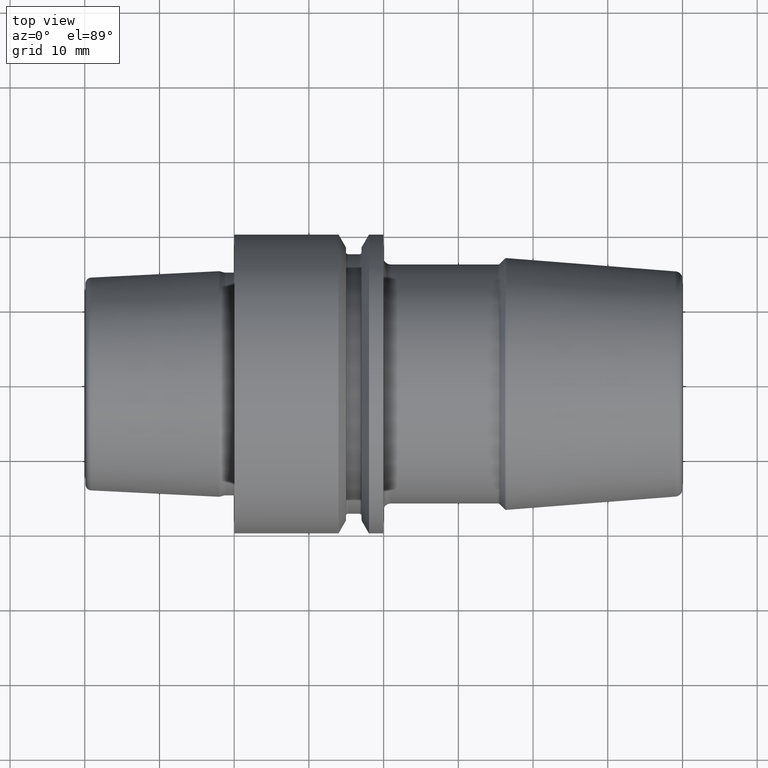
[diagram: clean part render]
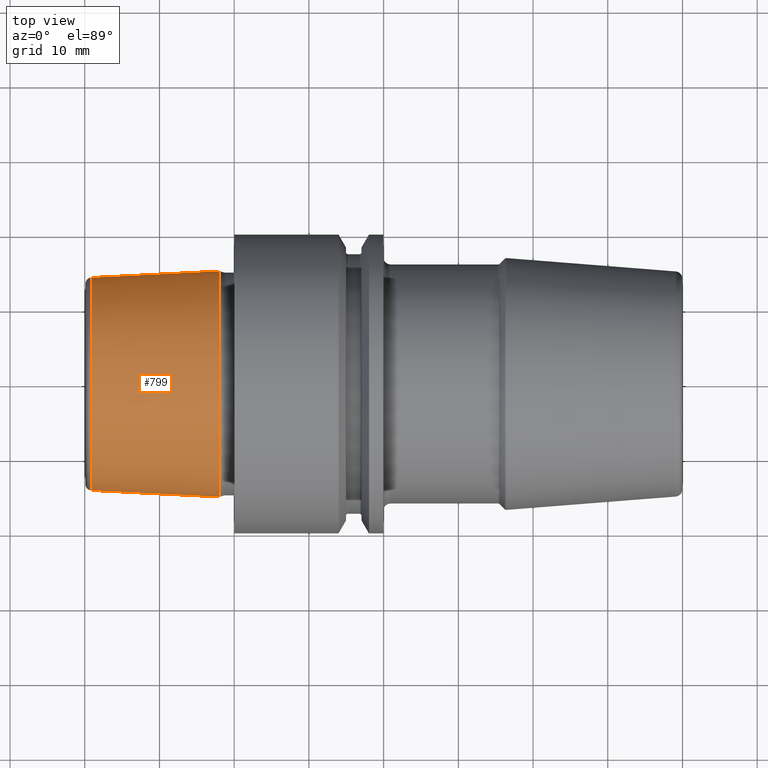
[diagram: same view with one face highlighted and labeled with its STEP entity id]
A machine part, top view. The second image highlights one B-rep face of the part: STEP entity #799.
In plain terms, the highlighted conical surface has half-angle 2.868 deg.
Its self-contained STEP definition (entity closure, byte-faithful):
#2=CARTESIAN_POINT('',(-2.E0,0.E0,0.E0));
#3=DIRECTION('',(1.E0,0.E0,0.E0));
#4=DIRECTION('',(0.E0,1.E0,0.E0));
#5=AXIS2_PLACEMENT_3D('',#2,#3,#4);
#30=DIRECTION('',(-9.987473526255E-1,-5.003724236654E-2,0.E0));
#31=VECTOR('',#30,1.716152713580E1);
#32=CARTESIAN_POINT('',(-2.E0,1.51037E1,0.E0));
#33=LINE('',#32,#31);
#34=DIRECTION('',(-9.987473526255E-1,5.003724236654E-2,0.E0));
#35=VECTOR('',#34,1.716152713580E1);
#36=CARTESIAN_POINT('',(-2.E0,-1.51037E1,0.E0));
#37=LINE('',#36,#35);
#53=CARTESIAN_POINT('',(-1.914002979389E1,0.E0,0.E0));
#54=DIRECTION('',(1.E0,0.E0,0.E0));
#55=DIRECTION('',(0.E0,1.E0,0.E0));
#56=AXIS2_PLACEMENT_3D('',#53,#54,#55);
#652=CARTESIAN_POINT('',(-2.E0,1.51037E1,0.E0));
#653=CARTESIAN_POINT('',(-2.E0,-1.51037E1,0.E0));
#654=VERTEX_POINT('',#652);
#655=VERTEX_POINT('',#653);
#656=CARTESIAN_POINT('',(-1.914002979389E1,1.424498450733E1,0.E0));
#657=VERTEX_POINT('',#656);
#658=CARTESIAN_POINT('',(-1.914002979389E1,-1.424498450733E1,0.E0));
#659=VERTEX_POINT('',#658);
#784=CARTESIAN_POINT('',(-1.057001489695E1,0.E0,0.E0));
#785=DIRECTION('',(1.E0,0.E0,0.E0));
#786=DIRECTION('',(0.E0,-1.E0,0.E0));
#787=AXIS2_PLACEMENT_3D('',#784,#785,#786);
#788=CONICAL_SURFACE('',#787,1.467434225366E1,2.868120487315E0);
#790=ORIENTED_EDGE('',*,*,#789,.T.);
#792=ORIENTED_EDGE('',*,*,#791,.T.);
#794=ORIENTED_EDGE('',*,*,#793,.F.);
#796=ORIENTED_EDGE('',*,*,#795,.F.);
#797=EDGE_LOOP('',(#790,#792,#794,#796));
#798=FACE_OUTER_BOUND('',#797,.F.);
#799=ADVANCED_FACE('',(#798),#788,.T.);
#6=CIRCLE('',#5,1.51037E1);
#57=CIRCLE('',#56,1.424498450733E1);
#789=EDGE_CURVE('',#654,#655,#6,.T.);
#791=EDGE_CURVE('',#655,#659,#37,.T.);
#793=EDGE_CURVE('',#657,#659,#57,.T.);
#795=EDGE_CURVE('',#654,#657,#33,.T.);